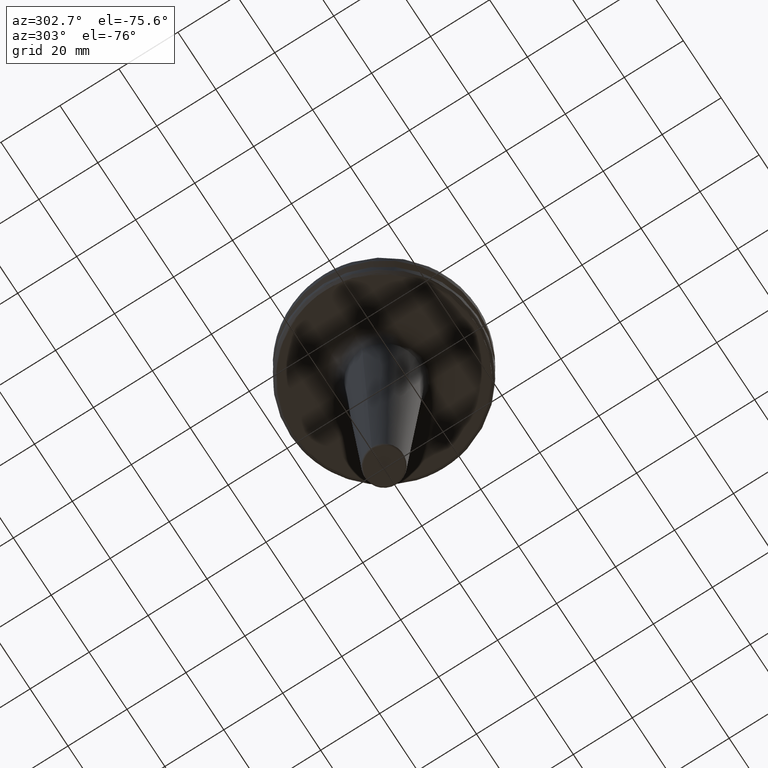
[diagram: clean part render]
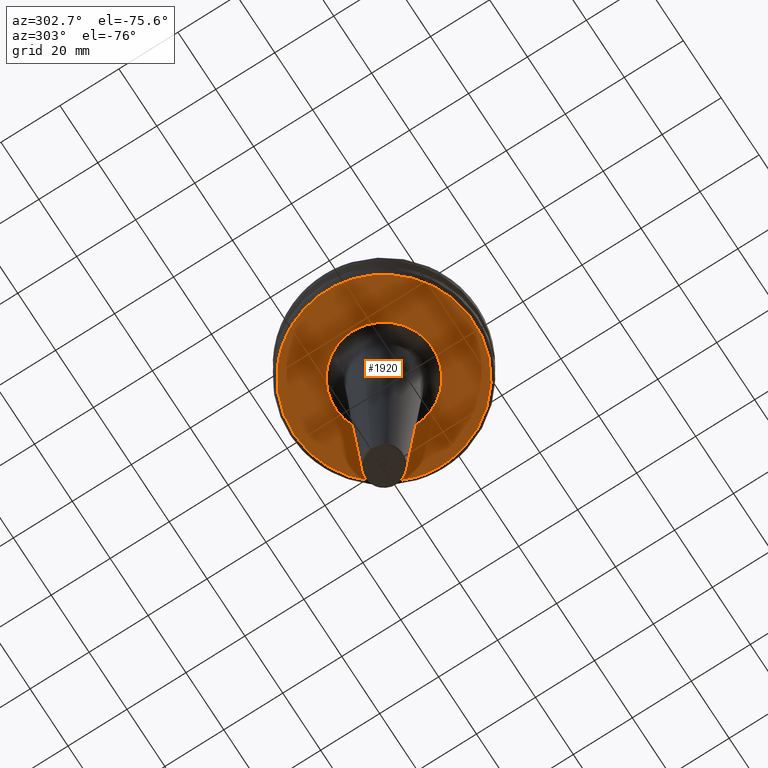
[diagram: same view with one face highlighted and labeled with its STEP entity id]
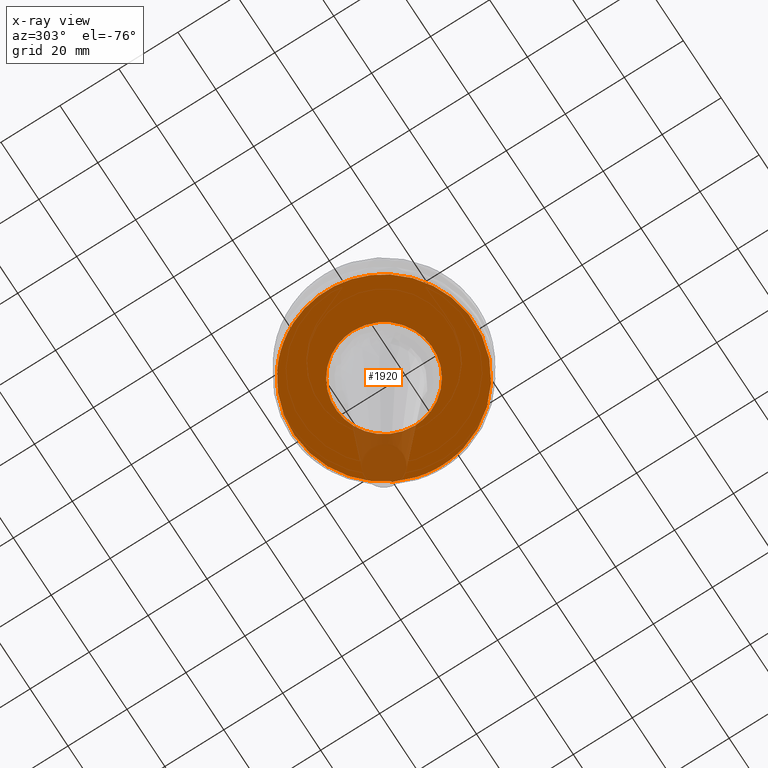
[diagram: x-ray of the same camera — body ghosted, the highlighted face saturated]
A machine part, auxiliary view. The second image highlights one B-rep face of the part: STEP entity #1920.
The next image is the same camera in x-ray: the body ghosted, the highlighted face saturated — about 10% of this face is hidden behind the body in this view.
In plain terms, the highlighted planar face has unit normal (0, 0, -1).
Its self-contained STEP definition (entity closure, byte-faithful):
#2 = CARTESIAN_POINT ( 'NONE',  ( -15.34615993165962600, 6.150526174094203200, -19.10000000000000900 ) ) ;
#4 = CARTESIAN_POINT ( 'NONE',  ( 3.074248791744299800, 16.24446030572720500, -19.10000000000000500 ) ) ;
#14 = CARTESIAN_POINT ( 'NONE',  ( -4.315362869124298200, 15.97550834787983800, -19.10000000000001200 ) ) ;
#26 = CARTESIAN_POINT ( 'NONE',  ( -8.987202671521004000, 13.87687311585517200, -19.09999999999999800 ) ) ;
#50 = CARTESIAN_POINT ( 'NONE',  ( 16.21269048989746200, -3.238690873126965500, -19.10000000000000100 ) ) ;
#60 = CARTESIAN_POINT ( 'NONE',  ( -8.767786026824518700, 29.30104552520869300, -19.10000000000000500 ) ) ;
#71 = CARTESIAN_POINT ( 'NONE',  ( 2.338937091250613300, 30.49485090081023100, -19.10000000000000100 ) ) ;
#75 = DIRECTION ( 'NONE',  ( -1.000000000000000000, 0.0000000000000000000, -0.0000000000000000000 ) ) ;
#81 = CARTESIAN_POINT ( 'NONE',  ( 11.26206975055332500, 28.44666309692501500, -19.10000000000000100 ) ) ;
#85 = CARTESIAN_POINT ( 'NONE',  ( 25.91506848432963000, -16.24456535706762800, -19.10000000000000500 ) ) ;
#95 = CARTESIAN_POINT ( 'NONE',  ( 16.98334930198293300, 25.44334661411777900, -19.10000000000000500 ) ) ;
#98 = ORIENTED_EDGE ( 'NONE', *, *, #2979, .F. ) ;
#100 = CARTESIAN_POINT ( 'NONE',  ( 19.93308098988654800, -23.26029377377305400, -19.10000000000000900 ) ) ;
#110 = CARTESIAN_POINT ( 'NONE',  ( 24.61278002360990800, 18.15588099004128300, -19.10000000000000500 ) ) ;
#112 = ORIENTED_EDGE ( 'NONE', *, *, #188, .F. ) ;
#113 = CARTESIAN_POINT ( 'NONE',  ( 9.741308101238560700, -28.99155239477984500, -19.10000000000000900 ) ) ;
#118 = CARTESIAN_POINT ( 'NONE',  ( 2.946176467438585500, -16.26817179765287900, -19.10000000000000500 ) ) ;
#121 = CARTESIAN_POINT ( 'NONE',  ( 28.28372968616552200, 11.63773453184817400, -19.10000000000000900 ) ) ;
#124 = CARTESIAN_POINT ( 'NONE',  ( -0.7936655208069568500, -30.58432798036122000, -19.10000000000000100 ) ) ;
#127 = CARTESIAN_POINT ( 'NONE',  ( 8.634766711520292400, -14.09994832678611200, -19.10000000000000500 ) ) ;
#132 = CARTESIAN_POINT ( 'NONE',  ( -9.343182468531940900, -29.12229317852812500, -19.10000000000000500 ) ) ;
#141 = CARTESIAN_POINT ( 'NONE',  ( 14.14349387669190200, -8.579424698877504700, -19.10000000000000900 ) ) ;
#150 = CARTESIAN_POINT ( 'NONE',  ( -20.23907096310340100, -22.95838911900774100, -19.10000000000000500 ) ) ;
#155 = CARTESIAN_POINT ( 'NONE',  ( -15.42083940724882200, -5.960811026865079600, -19.10000000000000500 ) ) ;
#157 = CARTESIAN_POINT ( 'NONE',  ( -25.49448276515892400, -16.89479980230323600, -19.10000000000000900 ) ) ;
#162 = CARTESIAN_POINT ( 'NONE',  ( -10.65405962079000100, -12.66483573253134100, -19.10000000000000100 ) ) ;
#168 = CARTESIAN_POINT ( 'NONE',  ( -6.116772042543587400, -15.35964183698100300, -19.10000000000000500 ) ) ;
#188 = EDGE_CURVE ( 'NONE', #316, #1870, #2642, .T. ) ;
#207 = CARTESIAN_POINT ( 'NONE',  ( 15.97550834788081000, 4.315362869119449700, -19.10000000000000500 ) ) ;
#219 = CARTESIAN_POINT ( 'NONE',  ( 13.87687311585640300, 8.987202671519780100, -19.10000000000000500 ) ) ;
#227 = CARTESIAN_POINT ( 'NONE',  ( 6.537441432171974900, 15.18649441436399300, -19.10000000000000500 ) ) ;
#233 = CARTESIAN_POINT ( 'NONE',  ( -16.26816980265087800, -2.946187250105369000, -19.10000000000000900 ) ) ;
#238 = CARTESIAN_POINT ( 'NONE',  ( -15.56928946571527600, 5.587261236326263300, -19.10000000000000900 ) ) ;
#239 = CARTESIAN_POINT ( 'NONE',  ( 2.014362670481972400, 16.44073249159519900, -19.10000000000001200 ) ) ;
#248 = CARTESIAN_POINT ( 'NONE',  ( -5.647711517077676800, 15.53924691929337100, -19.10000000000000500 ) ) ;
#256 = CARTESIAN_POINT ( 'NONE',  ( -10.88360247225647700, 12.49720936636870600, -19.10000000000000500 ) ) ;
#266 = ORIENTED_EDGE ( 'NONE', *, *, #2161, .F. ) ;
#282 = CARTESIAN_POINT ( 'NONE',  ( -14.11067696108144500, 27.14738034496676300, -19.10000000000000500 ) ) ;
#287 = CARTESIAN_POINT ( 'NONE',  ( 16.24446030572687500, -3.074248791746077900, -19.10000000000000900 ) ) ;
#295 = CARTESIAN_POINT ( 'NONE',  ( -6.159607642682074100, 29.98451923137153200, -19.10000000000000500 ) ) ;
#305 = CARTESIAN_POINT ( 'NONE',  ( 2.575749856820219300, 30.47575675141769800, -19.10000000000000500 ) ) ;
#309 = CARTESIAN_POINT ( 'NONE',  ( 29.29697359829781100, -8.815762972852718700, -19.10000000000000500 ) ) ;
#316 = VERTEX_POINT ( 'NONE', #2151 ) ;
#321 = CARTESIAN_POINT ( 'NONE',  ( 12.72171218949350900, 27.81364574513149900, -19.10000000000000900 ) ) ;
#325 = CARTESIAN_POINT ( 'NONE',  ( 25.63623530936496000, -16.67892256050461000, -19.10000000000000500 ) ) ;
#330 = CARTESIAN_POINT ( 'NONE',  ( 18.64294495310518600, 24.24904771131965500, -19.10000000000000900 ) ) ;
#331 = CARTESIAN_POINT ( 'NONE',  ( 16.82180190648200500, -25.56823429586928900, -19.10000000000000500 ) ) ;
#339 = CARTESIAN_POINT ( 'NONE',  ( 25.60981177358732800, 16.74023069123413500, -19.10000000000000500 ) ) ;
#340 = CARTESIAN_POINT ( 'NONE',  ( 9.588757991871142700, -29.04235927048969000, -19.10000000000000100 ) ) ;
#347 = CARTESIAN_POINT ( 'NONE',  ( 3.535410629580827600, -16.15924341479846800, -19.10000000000001600 ) ) ;
#353 = CARTESIAN_POINT ( 'NONE',  ( 28.79848820868595600, 10.36927195262887700, -19.10000000000000500 ) ) ;
#358 = CARTESIAN_POINT ( 'NONE',  ( -3.359542261740482900, -30.40384640239971500, -19.10000000000000500 ) ) ;
#361 = CARTESIAN_POINT ( 'NONE',  ( 8.929745624259492600, -13.91391154186276900, -19.10000000000000100 ) ) ;
#365 = FACE_OUTER_BOUND ( 'NONE', #918, .T. ) ;
#367 = CARTESIAN_POINT ( 'NONE',  ( -9.489238364085435900, -29.07503083623364400, -19.10000000000000900 ) ) ;
#372 = CARTESIAN_POINT ( 'NONE',  ( 14.99008722482821200, -6.983554063432520400, -19.10000000000000500 ) ) ;
#379 = CARTESIAN_POINT ( 'NONE',  ( -21.86129013470800300, -21.39082914621904400, -19.10000000000000100 ) ) ;
#382 = ORIENTED_EDGE ( 'NONE', *, *, #1884, .F. ) ;
#384 = CARTESIAN_POINT ( 'NONE',  ( -15.38482225176215900, -6.053167490767950000, -19.10000000000000500 ) ) ;
#386 = CARTESIAN_POINT ( 'NONE',  ( -26.61736808516047900, -15.10355864978086500, -19.10000000000000500 ) ) ;
#397 = CARTESIAN_POINT ( 'NONE',  ( -9.460890470830351600, -13.55953169659550100, -19.10000000000000500 ) ) ;
#406 = CARTESIAN_POINT ( 'NONE',  ( -4.828829969918425400, -15.82787418291114400, -19.10000000000000100 ) ) ;
#410 = ORIENTED_EDGE ( 'NONE', *, *, #630, .T. ) ;
#441 = CARTESIAN_POINT ( 'NONE',  ( 15.53924691929379700, 5.647711517075550500, -19.10000000000000500 ) ) ;
#451 = CARTESIAN_POINT ( 'NONE',  ( 12.49720936635984000, 10.88360247226535400, -19.10000000000000900 ) ) ;
#456 = CARTESIAN_POINT ( 'NONE',  ( -16.53276776323262000, -0.5055237567539482300, -19.10000000000000500 ) ) ;
#459 = CARTESIAN_POINT ( 'NONE',  ( -13.67987867621171500, 9.284334366236388200, -19.10000000000000500 ) ) ;
#460 = CARTESIAN_POINT ( 'NONE',  ( 6.215275202284222400, 15.32005311055830400, -19.10000000000000500 ) ) ;
#469 = CARTESIAN_POINT ( 'NONE',  ( -16.06412664297930700, 3.924941944440612000, -19.10000000000000500 ) ) ;
#470 = CARTESIAN_POINT ( 'NONE',  ( -0.5054361261884776600, 16.53278397658227000, -19.10000000000001200 ) ) ;
#479 = CARTESIAN_POINT ( 'NONE',  ( -5.960811026864933900, 15.42083940724902600, -19.10000000000001200 ) ) ;
#495 = CARTESIAN_POINT ( 'NONE',  ( -12.66483573254358500, 10.65405962077616000, -19.10000000000000900 ) ) ;
#516 = CARTESIAN_POINT ( 'NONE',  ( -12.65743148084894200, 27.84302147053579500, -19.10000000000000500 ) ) ;
#518 = CARTESIAN_POINT ( 'NONE',  ( 16.44076494094545300, -2.014187349633498300, -19.10000000000000900 ) ) ;
#519 = CARTESIAN_POINT ( 'NONE',  ( 0.0000000000000000000, 0.0000000000000000000, -19.10000000000000500 ) ) ;
#526 = CARTESIAN_POINT ( 'NONE',  ( -3.335826507667983200, 30.41349938460541600, -19.10000000000000100 ) ) ;
#528 = ORIENTED_EDGE ( 'NONE', *, *, #2738, .T. ) ;
#538 = DIRECTION ( 'NONE',  ( -0.0000000000000000000, -0.0000000000000000000, 1.000000000000000000 ) ) ;
#541 = CARTESIAN_POINT ( 'NONE',  ( 4.194626064597124500, 30.30646449917461300, -19.10000000000000500 ) ) ;
#543 = CARTESIAN_POINT ( 'NONE',  ( 28.44748858146412100, -11.24368615697392600, -19.10000000000000100 ) ) ;
#548 = CARTESIAN_POINT ( 'NONE',  ( 13.06536007812701200, 27.65325169537482700, -19.10000000000000100 ) ) ;
#549 = CARTESIAN_POINT ( 'NONE',  ( 25.55219655712748800, -16.80738867178014600, -19.10000000000000900 ) ) ;
#551 = B_SPLINE_CURVE_WITH_KNOTS ( 'NONE', 3,
 ( #985, #309, #1939, #543, #2167, #778, #2400, #1011, #2633, #1251, #2870, #1479, #85, #1713, #325, #1950, #549, #2178, #789, #2410, #1020, #2646, #1261, #2876, #1488, #100, #1725, #331, #1963, #562, #2185, #799, #2426, #1031, #2658, #1279, #2886, #1497, #113, #1738, #340, #1976, #578, #2199, #809, #2438, #1044, #2670, #1288, #2904, #1507, #124, #1752, #358, #1988, #591, #2216, #819, #2447, #1057, #2682, #1297, #2914, #1522, #132, #1763, #367, #1998, #599, #2226, #834, #2453, #1064, #2695, #1305, #2922, #1532, #150, #1771, #379, #2010, #606, #2234, #843, #2463, #1074, #2700, #1313, #2930, #1540, #157, #1780, #386, #2017, #616, #2243, #852, #2470, #1088, #2707, #1323, #2940 ),
 .UNSPECIFIED., .F., .F.,
 ( 4, 1, 1, 1, 1, 2, 2, 1, 1, 1, 1, 2, 2, 1, 1, 1, 2, 2, 2, 1, 1, 1, 2, 2, 1, 1, 1, 1, 2, 2, 1, 1, 1, 1, 2, 2, 2, 1, 1, 1, 1, 2, 2, 1, 1, 1, 1, 2, 2, 1, 1, 1, 2, 2, 2, 1, 1, 1, 2, 2, 1, 1, 1, 1, 2, 2, 1, 1, 1, 1, 2, 2, 4 ),
 ( 0.0000000000000000000, 0.03125000000000043000, 0.04687500000000063800, 0.05468750000000073600, 0.05859375000000075600, 0.06054687500000074200, 0.06250000000000072200, 0.09375000000000025000, 0.1093750000000000400, 0.1171874999999999200, 0.1210937499999997900, 0.1230468749999997600, 0.1249999999999997400, 0.1562499999999992200, 0.1718749999999989700, 0.1796874999999988600, 0.1835937499999988100, 0.1874999999999987500, 0.2499999999999989500, 0.2812499999999990000, 0.2968749999999991100, 0.3046874999999991700, 0.3085937499999991700, 0.3124999999999991100, 0.3437499999999990600, 0.3593749999999990600, 0.3671874999999990600, 0.3710937499999991100, 0.3730468749999991700, 0.3749999999999991700, 0.4062499999999991100, 0.4218749999999990600, 0.4296874999999990600, 0.4335937499999990600, 0.4355468749999990600, 0.4374999999999990600, 0.4999999999999995000, 0.5312499999999997800, 0.5468749999999998900, 0.5546875000000000000, 0.5585937500000000000, 0.5605468750000001100, 0.5625000000000001100, 0.5937500000000005600, 0.6093750000000007800, 0.6171875000000008900, 0.6210937500000008900, 0.6230468750000008900, 0.6250000000000008900, 0.6562500000000010000, 0.6718750000000010000, 0.6796875000000010000, 0.6835937500000011100, 0.6875000000000011100, 0.7500000000000013300, 0.7812500000000013300, 0.7968750000000013300, 0.8046875000000013300, 0.8085937500000012200, 0.8125000000000012200, 0.8437500000000014400, 0.8593750000000015500, 0.8671875000000015500, 0.8710937500000015500, 0.8730468750000015500, 0.8750000000000015500, 0.9062500000000016700, 0.9218750000000017800, 0.9296875000000017800, 0.9335937500000017800, 0.9355468750000017800, 0.9375000000000017800, 1.000000000000000000 ),
 .UNSPECIFIED. ) ;
#560 = CARTESIAN_POINT ( 'NONE',  ( 19.25930180620994000, 23.75930152089461000, -19.10000000000001200 ) ) ;
#562 = CARTESIAN_POINT ( 'NONE',  ( 14.88253584773120200, -26.72066063288397000, -19.10000000000000100 ) ) ;
#576 = CARTESIAN_POINT ( 'NONE',  ( 26.46695125748617600, 15.32790333300081500, -19.10000000000000900 ) ) ;
#578 = CARTESIAN_POINT ( 'NONE',  ( 7.565125950941371100, -29.65418414010071800, -19.10000000000000500 ) ) ;
#584 = CARTESIAN_POINT ( 'NONE',  ( 5.206696993599952500, -15.69559359181783100, -19.10000000000000500 ) ) ;
#588 = CARTESIAN_POINT ( 'NONE',  ( 29.50593695887979000, 8.050011640416025600, -19.10000000000000500 ) ) ;
#591 = CARTESIAN_POINT ( 'NONE',  ( -4.391022105728267500, -30.26774995785368500, -19.10000000000000500 ) ) ;
#594 = CARTESIAN_POINT ( 'NONE',  ( 10.00191735403211300, -13.21352104569939500, -19.10000000000000500 ) ) ;
#599 = CARTESIAN_POINT ( 'NONE',  ( -11.53725264662773900, -28.34718016712044900, -19.10000000000000900 ) ) ;
#602 = CARTESIAN_POINT ( 'NONE',  ( 15.28060017657957400, -6.312245946726529900, -19.10000000000000500 ) ) ;
#606 = CARTESIAN_POINT ( 'NONE',  ( -22.23347045905034500, -21.00201711043238700, -19.10000000000000100 ) ) ;
#614 = CARTESIAN_POINT ( 'NONE',  ( -14.82045920772340600, -7.364574780070396900, -19.10000000000000900 ) ) ;
#616 = CARTESIAN_POINT ( 'NONE',  ( -27.60161413460691900, -13.17678050942531300, -19.10000000000001200 ) ) ;
#624 = CARTESIAN_POINT ( 'NONE',  ( -9.166049023286326800, -13.75939887885152200, -19.10000000000000100 ) ) ;
#630 = EDGE_CURVE ( 'NONE', #2018, #1870, #671, .T. ) ;
#632 = CARTESIAN_POINT ( 'NONE',  ( -3.468235044735970400, -16.16589544550655700, -19.10000000000000500 ) ) ;
#635 = AXIS2_PLACEMENT_3D ( 'NONE', #941, #2567, #1187 ) ;
#671 = B_SPLINE_CURVE_WITH_KNOTS ( 'NONE', 3,
 ( #1746, #1037, #816, #2442, #1052, #2676 ),
 .UNSPECIFIED., .F., .F.,
 ( 4, 2, 4 ),
 ( 0.0000000000000000000, 0.5000000000000000000, 1.000000000000000000 ),
 .UNSPECIFIED. ) ;
#673 = CARTESIAN_POINT ( 'NONE',  ( 15.42083940724917000, 5.960811026864265100, -19.10000000000000500 ) ) ;
#684 = CARTESIAN_POINT ( 'NONE',  ( 10.65405962078392600, 12.66483573253581500, -19.10000000000000500 ) ) ;
#690 = CARTESIAN_POINT ( 'NONE',  ( -13.79964722198945100, 9.105325154445665700, -19.10000000000000900 ) ) ;
#693 = CARTESIAN_POINT ( 'NONE',  ( 6.116772042544477400, 15.35964183698079400, -19.10000000000000900 ) ) ;
#708 = CARTESIAN_POINT ( 'NONE',  ( -16.21269048989853400, 3.238690873121286900, -19.10000000000000900 ) ) ;
#709 = CARTESIAN_POINT ( 'NONE',  ( -2.136224349892057000, 16.39765989801975700, -19.10000000000000500 ) ) ;
#719 = CARTESIAN_POINT ( 'NONE',  ( -6.053167490767644500, 15.38482225176231400, -19.10000000000000500 ) ) ;
#730 = CARTESIAN_POINT ( 'NONE',  ( -13.55953169660085000, 9.460890470824294200, -19.10000000000000100 ) ) ;
#750 = CARTESIAN_POINT ( 'NONE',  ( -12.30602042319770800, 27.99943186576027500, -19.10000000000001600 ) ) ;
#753 = CARTESIAN_POINT ( 'NONE',  ( 16.53276776323262000, 2.024680112228937900E-015, -19.10000000000000500 ) ) ;
#754 = DIRECTION ( 'NONE',  ( 1.000000000000000000, 0.0000000000000000000, 0.0000000000000000000 ) ) ;
#763 = CARTESIAN_POINT ( 'NONE',  ( -1.754889633223906300, 30.53434994063401200, -19.10000000000000500 ) ) ;
#776 = CARTESIAN_POINT ( 'NONE',  ( 5.798126224598956200, 30.03039269424756300, -19.10000000000000100 ) ) ;
#778 = CARTESIAN_POINT ( 'NONE',  ( 28.04473044301726900, -12.20290262157235800, -19.10000000000000100 ) ) ;
#785 = CARTESIAN_POINT ( 'NONE',  ( 13.76217383423211000, 27.32011485464017000, -19.10000000000000500 ) ) ;
#788 = CARTESIAN_POINT ( 'NONE',  ( -16.53276776323262000, 0.0000000000000000000, -19.10000000000000500 ) ) ;
#789 = CARTESIAN_POINT ( 'NONE',  ( 24.31095900104777700, -18.59161355311120500, -19.10000000000000900 ) ) ;
#797 = CARTESIAN_POINT ( 'NONE',  ( 20.48123999505939400, 22.74936446789017100, -19.10000000000000100 ) ) ;
#799 = CARTESIAN_POINT ( 'NONE',  ( 14.40947314747780600, -26.97737969063206300, -19.10000000000000500 ) ) ;
#803 = CARTESIAN_POINT ( 'NONE',  ( -1.010872252384309200, -16.53273533653331700, -19.10000000000000500 ) ) ;
#807 = CARTESIAN_POINT ( 'NONE',  ( 26.66158410836062100, 14.98553842598051500, -19.10000000000000500 ) ) ;
#809 = CARTESIAN_POINT ( 'NONE',  ( 5.447226833889317300, -30.09658397973939300, -19.10000000000000500 ) ) ;
#814 = CARTESIAN_POINT ( 'NONE',  ( 5.867055644133836600, -15.45697625940530000, -19.10000000000000900 ) ) ;
#816 = CARTESIAN_POINT ( 'NONE',  ( -28.29883549210119800, 11.76494105805098300, -19.10000000000000500 ) ) ;
#819 = CARTESIAN_POINT ( 'NONE',  ( -4.636279539811212700, -30.23090493186514000, -19.10000000000000100 ) ) ;
#826 = CARTESIAN_POINT ( 'NONE',  ( 12.09384705961449700, -11.28704361256715000, -19.10000000000000500 ) ) ;
#831 = CARTESIAN_POINT ( 'NONE',  ( 29.50593695887979000, 8.050011640416025600, -19.10000000000000500 ) ) ;
#834 = CARTESIAN_POINT ( 'NONE',  ( -13.55750927079556900, -27.41669403125807100, -19.10000000000000500 ) ) ;
#839 = CARTESIAN_POINT ( 'NONE',  ( 15.34615993165869500, -6.150526174095629600, -19.10000000000000100 ) ) ;
#843 = CARTESIAN_POINT ( 'NONE',  ( -22.95981042903576300, -20.22301021334099100, -19.10000000000000900 ) ) ;
#850 = CARTESIAN_POINT ( 'NONE',  ( -14.09994832679044000, -8.634766711511176100, -19.10000000000000500 ) ) ;
#852 = CARTESIAN_POINT ( 'NONE',  ( -27.81895210720312800, -12.70861568514636500, -19.10000000000000500 ) ) ;
#859 = CARTESIAN_POINT ( 'NONE',  ( -8.579424698881169300, -14.14349387669129100, -19.10000000000000500 ) ) ;
#868 = CARTESIAN_POINT ( 'NONE',  ( -3.140059644919705100, -16.23186921816281400, -19.10000000000000100 ) ) ;
#890 = ORIENTED_EDGE ( 'NONE', *, *, #1446, .T. ) ;
#898 = CARTESIAN_POINT ( 'NONE',  ( 16.39763861799833900, 2.136339365003880400, -19.10000000000000500 ) ) ;
#908 = CARTESIAN_POINT ( 'NONE',  ( 15.38482225176254800, 6.053167490766972100, -19.10000000000000500 ) ) ;
#918 = EDGE_LOOP ( 'NONE', ( #98, #410, #112, #528, #382, #266, #1999 ) ) ;
#919 = CARTESIAN_POINT ( 'NONE',  ( 9.460890470827692400, 13.55953169659745700, -19.10000000000000500 ) ) ;
#928 = CARTESIAN_POINT ( 'NONE',  ( -14.56449018541324100, 7.858665967342094700, -19.10000000000000100 ) ) ;
#929 = CARTESIAN_POINT ( 'NONE',  ( 4.828829969893796200, 15.82787418291696100, -19.10000000000000500 ) ) ;
#934 = CARTESIAN_POINT ( 'NONE',  ( -16.24446030572719500, 3.074248791744376200, -19.10000000000000900 ) ) ;
#935 = CARTESIAN_POINT ( 'NONE',  ( -2.790652485336386800, 16.29575933004248600, -19.10000000000000100 ) ) ;
#941 = CARTESIAN_POINT ( 'NONE',  ( 0.0000000000000000000, 0.0000000000000000000, -19.10000000000000500 ) ) ;
#944 = CARTESIAN_POINT ( 'NONE',  ( -7.364574780079108200, 14.82045920771881200, -19.10000000000001200 ) ) ;
#980 = CARTESIAN_POINT ( 'NONE',  ( -11.58667819376902100, 28.31160413811162600, -19.10000000000000900 ) ) ;
#985 = CARTESIAN_POINT ( 'NONE',  ( 29.50593695866786700, -8.050011641192792700, -19.10000000000000500 ) ) ;
#993 = CARTESIAN_POINT ( 'NONE',  ( -1.277990131494122400, 30.55800543620354400, -19.10000000000000500 ) ) ;
#994 = ORIENTED_EDGE ( 'NONE', *, *, #1116, .T. ) ;
#1008 = CARTESIAN_POINT ( 'NONE',  ( 6.178357567779041700, 29.95386665788899800, -19.10000000000000900 ) ) ;
#1011 = CARTESIAN_POINT ( 'NONE',  ( 27.94464134489557200, -12.42979159005786200, -19.10000000000001200 ) ) ;
#1017 = CARTESIAN_POINT ( 'NONE',  ( 15.52813128130545700, 26.35237235011442500, -19.10000000000000900 ) ) ;
#1020 = CARTESIAN_POINT ( 'NONE',  ( 22.88153702451384300, -20.29572449130178000, -19.10000000000000100 ) ) ;
#1029 = CARTESIAN_POINT ( 'NONE',  ( 22.71169545599505600, 20.49349008205810900, -19.10000000000000900 ) ) ;
#1031 = CARTESIAN_POINT ( 'NONE',  ( 13.46675684607612000, -27.47306857769193300, -19.10000000000000900 ) ) ;
#1036 = CARTESIAN_POINT ( 'NONE',  ( 1.260557331713640900, -16.49829507823681100, -19.10000000000000500 ) ) ;
#1037 = CARTESIAN_POINT ( 'NONE',  ( -28.99013299704189700, 9.940434568560412700, -19.10000000000000100 ) ) ;
#1040 = CARTESIAN_POINT ( 'NONE',  ( 27.03965408853028400, 14.30535447364331600, -19.10000000000000100 ) ) ;
#1044 = CARTESIAN_POINT ( 'NONE',  ( 4.938364931540699700, -30.18303432026915800, -19.10000000000000500 ) ) ;
#1050 = CARTESIAN_POINT ( 'NONE',  ( 6.023259227988106100, -15.39655306182878500, -19.10000000000000500 ) ) ;
#1052 = CARTESIAN_POINT ( 'NONE',  ( -25.54018883534800800, 16.93931054832113100, -19.10000000000000500 ) ) ;
#1057 = CARTESIAN_POINT ( 'NONE',  ( -5.550699401406691700, -30.08776695510170300, -19.10000000000000500 ) ) ;
#1059 = CARTESIAN_POINT ( 'NONE',  ( 13.27125534796412500, -9.866751345989206000, -19.10000000000000500 ) ) ;
#1064 = CARTESIAN_POINT ( 'NONE',  ( -14.03061632106972200, -27.17633901377901000, -19.10000000000000900 ) ) ;
#1070 = CARTESIAN_POINT ( 'NONE',  ( 15.56928946571268200, -5.587261236340093100, -19.10000000000000500 ) ) ;
#1072 = CARTESIAN_POINT ( 'NONE',  ( -16.15924341479917800, -3.535410629576757100, -19.09999999999999800 ) ) ;
#1074 = CARTESIAN_POINT ( 'NONE',  ( -24.67913322280990200, -18.07380832753302600, -19.10000000000000500 ) ) ;
#1085 = CARTESIAN_POINT ( 'NONE',  ( -13.91391154186414700, -8.929745624256614900, -19.10000000000000500 ) ) ;
#1088 = CARTESIAN_POINT ( 'NONE',  ( -27.88382002489398900, -12.56563911166203700, -19.10000000000000900 ) ) ;
#1093 = CARTESIAN_POINT ( 'NONE',  ( -6.983554063437324500, -14.99008722482742500, -19.10000000000001200 ) ) ;
#1101 = CARTESIAN_POINT ( 'NONE',  ( -3.039415081285464600, -16.25101013402035800, -19.10000000000000100 ) ) ;
#1103 = CARTESIAN_POINT ( 'NONE',  ( 30.58435880037907500, 0.0000000000000000000, -19.10000000000000500 ) ) ;
#1116 = EDGE_CURVE ( 'NONE', #1594, #2478, #1775, .T. ) ;
#1129 = CARTESIAN_POINT ( 'NONE',  ( 16.29575268003579000, 2.790688427558834000, -19.10000000000000100 ) ) ;
#1141 = CARTESIAN_POINT ( 'NONE',  ( 14.82045920771239600, 7.364574780097800800, -19.10000000000000100 ) ) ;
#1151 = CARTESIAN_POINT ( 'NONE',  ( 9.166049023285481200, 13.75939887885213500, -19.10000000000000500 ) ) ;
#1157 = CARTESIAN_POINT ( 'NONE',  ( -16.53276776323262000, 0.0000000000000000000, -19.10000000000000500 ) ) ;
#1161 = CARTESIAN_POINT ( 'NONE',  ( -15.18649441436540600, 6.537441432168059800, -19.10000000000000500 ) ) ;
#1163 = CARTESIAN_POINT ( 'NONE',  ( 3.468235044725200400, 16.16589544550910100, -19.10000000000000900 ) ) ;
#1172 = CARTESIAN_POINT ( 'NONE',  ( -16.44076494094544600, 2.014187349633085300, -19.10000000000000500 ) ) ;
#1176 = CARTESIAN_POINT ( 'NONE',  ( -2.946176467438133900, 16.26817179765287200, -19.10000000000000100 ) ) ;
#1187 = DIRECTION ( 'NONE',  ( 1.000000000000000000, 0.0000000000000000000, 0.0000000000000000000 ) ) ;
#1188 = EDGE_CURVE ( 'NONE', #2066, #2266, #551, .T. ) ;
#1190 = CARTESIAN_POINT ( 'NONE',  ( -8.634766711514988200, 14.09994832678842700, -19.10000000000000100 ) ) ;
#1198 = CARTESIAN_POINT ( 'NONE',  ( -18.50002675305175600, 24.35471234419720000, -19.10000000000000500 ) ) ;
#1216 = CARTESIAN_POINT ( 'NONE',  ( 15.82787418291227200, -4.828829969919158100, -19.10000000000000500 ) ) ;
#1227 = VERTEX_POINT ( 'NONE', #1103 ) ;
#1228 = CARTESIAN_POINT ( 'NONE',  ( -9.668279344121133400, 29.01896080072954100, -19.10000000000000500 ) ) ;
#1238 = AXIS2_PLACEMENT_3D ( 'NONE', #1328, #1800, #1347 ) ;
#1241 = CARTESIAN_POINT ( 'NONE',  ( 0.4531822849060669900, 30.59235866177671400, -19.10000000000000500 ) ) ;
#1248 = CARTESIAN_POINT ( 'NONE',  ( 7.517538265328743900, 29.67087649393396000, -19.10000000000000500 ) ) ;
#1251 = CARTESIAN_POINT ( 'NONE',  ( 27.56587331839861600, -13.27428387458943800, -19.09999999999999800 ) ) ;
#1258 = CARTESIAN_POINT ( 'NONE',  ( 16.18968749047009200, 25.94803225022423700, -19.10000000000000900 ) ) ;
#1261 = CARTESIAN_POINT ( 'NONE',  ( 22.52513206187470700, -20.68888644021010800, -19.10000000000000900 ) ) ;
#1275 = CARTESIAN_POINT ( 'NONE',  ( 24.03691940912555600, 18.91573389369128600, -19.10000000000000500 ) ) ;
#1279 = CARTESIAN_POINT ( 'NONE',  ( 10.94079956306805100, -28.56608249322954800, -19.10000000000000900 ) ) ;
#1284 = CARTESIAN_POINT ( 'NONE',  ( 2.572730928590551100, -16.33224277487438100, -19.10000000000000100 ) ) ;
#1286 = CARTESIAN_POINT ( 'NONE',  ( 27.91908508163535500, 12.49379923642603000, -19.10000000000000500 ) ) ;
#1288 = CARTESIAN_POINT ( 'NONE',  ( 4.783350766199017600, -30.20798338819395200, -19.10000000000000500 ) ) ;
#1291 = CARTESIAN_POINT ( 'NONE',  ( 6.604934064761747200, -15.16640282920802500, -19.10000000000000900 ) ) ;
#1297 = CARTESIAN_POINT ( 'NONE',  ( -8.158427338735364700, -29.48125659895528400, -19.10000000000000500 ) ) ;
#1299 = CARTESIAN_POINT ( 'NONE',  ( 13.67987867621011400, -9.284334366238832500, -19.10000000000000500 ) ) ;
#1305 = CARTESIAN_POINT ( 'NONE',  ( -15.74490649238654400, -26.27680638947031300, -19.10000000000000900 ) ) ;
#1310 = CARTESIAN_POINT ( 'NONE',  ( -15.69559359181877200, -5.206696993594606600, -19.10000000000000500 ) ) ;
#1313 = CARTESIAN_POINT ( 'NONE',  ( -25.31652938757393300, -17.16082103678996200, -19.10000000000000100 ) ) ;
#1322 = CARTESIAN_POINT ( 'NONE',  ( -13.21352104570850000, -10.00191735402485400, -19.10000000000001200 ) ) ;
#1323 = CARTESIAN_POINT ( 'NONE',  ( -29.08795742227681900, -9.581875916355663500, -19.09999999999999800 ) ) ;
#1328 = CARTESIAN_POINT ( 'NONE',  ( 0.0000000000000000000, 0.0000000000000000000, -19.10000000000000500 ) ) ;
#1331 = CARTESIAN_POINT ( 'NONE',  ( -6.312245946728033600, -15.28060017657932900, -19.10000000000000500 ) ) ;
#1347 = DIRECTION ( 'NONE',  ( 1.000000000000000000, 0.0000000000000000000, 0.0000000000000000000 ) ) ;
#1355 = AXIS2_PLACEMENT_3D ( 'NONE', #1933, #538, #2162 ) ;
#1363 = CIRCLE ( 'NONE', #635, 30.58435880041008700 ) ;
#1368 = CARTESIAN_POINT ( 'NONE',  ( 16.26816980265088100, 2.946187250104871600, -19.10000000000000900 ) ) ;
#1374 = EDGE_LOOP ( 'NONE', ( #994, #890 ) ) ;
#1378 = CARTESIAN_POINT ( 'NONE',  ( 14.09994832678563400, 8.634766711523166500, -19.10000000000000500 ) ) ;
#1385 = CARTESIAN_POINT ( 'NONE',  ( 8.579424698870990800, 14.14349387669766000, -19.10000000000000500 ) ) ;
#1392 = CARTESIAN_POINT ( 'NONE',  ( -16.33223036152855200, -2.572798020739421000, -19.10000000000000500 ) ) ;
#1394 = CARTESIAN_POINT ( 'NONE',  ( -15.32005311055874600, 6.215275202282990500, -19.10000000000000500 ) ) ;
#1395 = CARTESIAN_POINT ( 'NONE',  ( 3.140059644916327400, 16.23186921816361000, -19.10000000000000100 ) ) ;
#1406 = CARTESIAN_POINT ( 'NONE',  ( -16.53276776323262000, 0.0000000000000000000, -19.10000000000000500 ) ) ;
#1407 = CARTESIAN_POINT ( 'NONE',  ( -3.535410629576127400, 16.15924341480005600, -19.10000000000000500 ) ) ;
#1415 = CARTESIAN_POINT ( 'NONE',  ( -8.929745624257812200, 13.91391154186350600, -19.10000000000000900 ) ) ;
#1436 = CARTESIAN_POINT ( 'NONE',  ( -17.51886799372202900, 25.09995254383747500, -19.10000000000000500 ) ) ;
#1442 = CARTESIAN_POINT ( 'NONE',  ( 16.16589544550705100, -3.468235044736296800, -19.10000000000000500 ) ) ;
#1443 = CARTESIAN_POINT ( 'NONE',  ( -24.35471234555335200, 18.50002675126641800, -19.10000000000000500 ) ) ;
#1446 = EDGE_CURVE ( 'NONE', #2478, #1594, #2972, .T. ) ;
#1449 = CARTESIAN_POINT ( 'NONE',  ( -8.917516567687371800, 29.25582015750815400, -19.10000000000000500 ) ) ;
#1462 = CARTESIAN_POINT ( 'NONE',  ( 2.103333420339649000, 30.51262227300270200, -19.10000000000000100 ) ) ;
#1466 = DIRECTION ( 'NONE',  ( 0.0000000000000000000, 0.0000000000000000000, -1.000000000000000000 ) ) ;
#1474 = CARTESIAN_POINT ( 'NONE',  ( 10.41034370100355100, 28.76445469558826700, -19.10000000000000500 ) ) ;
#1479 = CARTESIAN_POINT ( 'NONE',  ( 26.29437709911257700, -15.63042418696883700, -19.10000000000000500 ) ) ;
#1486 = CARTESIAN_POINT ( 'NONE',  ( 16.38572052405262600, 25.82468945861612000, -19.10000000000000100 ) ) ;
#1488 = CARTESIAN_POINT ( 'NONE',  ( 21.20610461385350800, -22.10596665135101400, -19.10000000000000100 ) ) ;
#1495 = CARTESIAN_POINT ( 'NONE',  ( 24.51742230446014800, 18.28446092688399100, -19.10000000000000500 ) ) ;
#1497 = CARTESIAN_POINT ( 'NONE',  ( 9.892237708290188900, -28.94069923155255000, -19.10000000000000500 ) ) ;
#1501 = CARTESIAN_POINT ( 'NONE',  ( 2.883976352672581000, -16.27931466441612700, -19.10000000000000100 ) ) ;
#1505 = CARTESIAN_POINT ( 'NONE',  ( 28.22432639104233900, 11.78107541670503600, -19.10000000000000500 ) ) ;
#1507 = CARTESIAN_POINT ( 'NONE',  ( 1.587331041613742700, -30.58428776442982800, -19.10000000000000500 ) ) ;
#1513 = CARTESIAN_POINT ( 'NONE',  ( 8.217005526796082600, -14.35108143407733100, -19.10000000000000100 ) ) ;
#1522 = CARTESIAN_POINT ( 'NONE',  ( -9.195643051181685100, -29.16949528698672400, -19.10000000000000900 ) ) ;
#1527 = CARTESIAN_POINT ( 'NONE',  ( 13.79964722199039800, -9.105325154444203800, -19.10000000000000500 ) ) ;
#1532 = CARTESIAN_POINT ( 'NONE',  ( -19.24823797460855300, -23.78338029378941300, -19.10000000000001200 ) ) ;
#1538 = CARTESIAN_POINT ( 'NONE',  ( -15.45697625940559100, -5.867055644132165100, -19.10000000000000500 ) ) ;
#1540 = CARTESIAN_POINT ( 'NONE',  ( -25.46428937167067700, -16.94027857338939600, -19.10000000000000500 ) ) ;
#1547 = AXIS2_PLACEMENT_3D ( 'NONE', #1929, #1466, #75 ) ;
#1549 = CARTESIAN_POINT ( 'NONE',  ( -11.28704361256975700, -12.09384705961096900, -19.10000000000000500 ) ) ;
#1563 = CARTESIAN_POINT ( 'NONE',  ( -6.150526174096079900, -15.34615993165861900, -19.10000000000000100 ) ) ;
#1591 = CIRCLE ( 'NONE', #2556, 30.58435880041008700 ) ;
#1594 = VERTEX_POINT ( 'NONE', #788 ) ;
#1601 = CARTESIAN_POINT ( 'NONE',  ( 16.15924341480061700, 3.535410629573359800, -19.10000000000000500 ) ) ;
#1612 = CARTESIAN_POINT ( 'NONE',  ( 13.91391154186262500, 8.929745624260402100, -19.10000000000000500 ) ) ;
#1621 = CARTESIAN_POINT ( 'NONE',  ( 6.983554063423966300, 14.99008722483578100, -19.10000000000000500 ) ) ;
#1622 = CARTESIAN_POINT ( 'NONE',  ( 16.53276776323262000, 2.024680112228937900E-015, -19.10000000000000500 ) ) ;
#1626 = CARTESIAN_POINT ( 'NONE',  ( -16.27931076941221600, -2.883997404545823000, -19.10000000000000500 ) ) ;
#1629 = CARTESIAN_POINT ( 'NONE',  ( -15.35964183698079900, 6.116772042544433900, -19.10000000000000900 ) ) ;
#1630 = CARTESIAN_POINT ( 'NONE',  ( 3.039415081285699500, 16.25101013402036200, -19.10000000000000500 ) ) ;
#1639 = CARTESIAN_POINT ( 'NONE',  ( -5.206696993593783200, 15.69559359181990900, -19.10000000000000500 ) ) ;
#1654 = CARTESIAN_POINT ( 'NONE',  ( -10.00191735403386600, 13.21352104570133300, -19.10000000000001200 ) ) ;
#1672 = CARTESIAN_POINT ( 'NONE',  ( -15.99112436415940900, 26.12219316515105300, -19.10000000000000900 ) ) ;
#1677 = CARTESIAN_POINT ( 'NONE',  ( 16.23186921816297000, -3.140059644919806800, -19.10000000000000500 ) ) ;
#1684 = CARTESIAN_POINT ( 'NONE',  ( -7.396785857642844200, 29.70357443817780300, -19.10000000000000100 ) ) ;
#1699 = CARTESIAN_POINT ( 'NONE',  ( 2.495993614183678500, 30.48239565653807800, -19.10000000000000500 ) ) ;
#1702 = CIRCLE ( 'NONE', #1355, 30.58435880041008700 ) ;
#1711 = CARTESIAN_POINT ( 'NONE',  ( 12.23810548582505600, 28.03197362945626700, -19.10000000000000500 ) ) ;
#1713 = CARTESIAN_POINT ( 'NONE',  ( 25.72060642469137200, -16.54900938329657500, -19.10000000000000500 ) ) ;
#1723 = CARTESIAN_POINT ( 'NONE',  ( 17.76311001678113400, 24.91123626348944600, -19.10000000000000100 ) ) ;
#1725 = CARTESIAN_POINT ( 'NONE',  ( 17.87849741863398000, -24.82948193938068100, -19.10000000000000100 ) ) ;
#1734 = CARTESIAN_POINT ( 'NONE',  ( 25.07711885281372900, 17.51959354323408400, -19.10000000000000100 ) ) ;
#1738 = CARTESIAN_POINT ( 'NONE',  ( 9.640580262597561400, -29.02520083562890100, -19.10000000000000500 ) ) ;
#1744 = CARTESIAN_POINT ( 'NONE',  ( 2.975411778108792300, -16.26285403896940800, -19.10000000000000900 ) ) ;
#1746 = CARTESIAN_POINT ( 'NONE',  ( -29.50593695866786700, 8.050011641192792700, -19.10000000000000500 ) ) ;
#1750 = CARTESIAN_POINT ( 'NONE',  ( 28.31382758094056800, 11.56430445685524000, -19.10000000000000900 ) ) ;
#1752 = CARTESIAN_POINT ( 'NONE',  ( -1.980707750522268800, -30.53825656188765000, -19.10000000000000900 ) ) ;
#1756 = CARTESIAN_POINT ( 'NONE',  ( 8.811995607410331400, -13.98879609070276700, -19.10000000000000100 ) ) ;
#1763 = CARTESIAN_POINT ( 'NONE',  ( -9.441481674779128100, -29.09057131782455500, -19.10000000000000500 ) ) ;
#1766 = CARTESIAN_POINT ( 'NONE',  ( 14.56449018539992900, -7.858665967362459700, -19.10000000000000500 ) ) ;
#1771 = CARTESIAN_POINT ( 'NONE',  ( -21.33119217829327100, -21.92514203399821300, -19.10000000000000500 ) ) ;
#1775 = B_SPLINE_CURVE_WITH_KNOTS ( 'NONE', 3,
 ( #1157, #456, #1850, #2783, #1392, #3004, #1626, #233, #2461, #1072, #2699, #1310, #2927, #1538, #155, #1779, #384, #2016, #614, #2242, #850, #2469, #1085, #2706, #1322, #2939, #1549, #162, #1788, #397, #2025, #624, #2252, #859, #2477, #1093, #2715, #1331, #2948, #1563, #168, #1797, #406, #2035, #632, #2260, #868, #2486, #1101, #2723, #803, #2432, #1036, #2665, #1284, #2896, #1501, #118, #1744, #347, #1981, #584, #2209, #814, #2441, #1050, #2675, #1291, #2909, #1513, #127, #1756, #361, #1990, #594, #2220, #826, #2449, #1059, #2688, #1299, #2916, #1527, #141, #1766, #372, #2005, #602, #2230, #839, #2457, #1070, #1216, #2834, #1442, #50, #1677, #287, #1915, #518, #2142, #753 ),
 .UNSPECIFIED., .F., .F.,
 ( 4, 1, 1, 1, 1, 2, 2, 1, 1, 1, 1, 2, 2, 1, 1, 1, 2, 2, 2, 1, 1, 1, 2, 2, 1, 1, 1, 1, 2, 2, 1, 1, 1, 1, 2, 2, 2, 1, 1, 1, 1, 2, 2, 1, 1, 1, 1, 2, 2, 1, 1, 1, 2, 2, 2, 1, 1, 1, 2, 2, 1, 1, 1, 1, 2, 2, 1, 1, 1, 1, 2, 2, 4 ),
 ( 0.0000000000000000000, 0.03125000000000147100, 0.04687500000000222000, 0.05468750000000260200, 0.05859375000000278900, 0.06054687500000286600, 0.06250000000000294200, 0.09375000000000360800, 0.1093750000000039400, 0.1171875000000041200, 0.1210937500000042200, 0.1230468750000042600, 0.1250000000000043000, 0.1562500000000047500, 0.1718750000000049400, 0.1796875000000050800, 0.1835937500000050800, 0.1875000000000051100, 0.2500000000000057200, 0.2812500000000060000, 0.2968750000000062200, 0.3046875000000062700, 0.3085937500000063800, 0.3125000000000064400, 0.3437500000000069400, 0.3593750000000072700, 0.3671875000000073800, 0.3710937500000074400, 0.3730468750000073800, 0.3750000000000073800, 0.4062500000000067700, 0.4218750000000064900, 0.4296875000000062700, 0.4335937500000062200, 0.4355468750000061600, 0.4375000000000061600, 0.5000000000000051100, 0.5312500000000046600, 0.5468750000000044400, 0.5546875000000043300, 0.5585937500000043300, 0.5605468750000043300, 0.5625000000000042200, 0.5937500000000037700, 0.6093750000000034400, 0.6171875000000034400, 0.6210937500000033300, 0.6230468750000033300, 0.6250000000000033300, 0.6562500000000024400, 0.6718750000000021100, 0.6796875000000018900, 0.6835937500000018900, 0.6875000000000017800, 0.7500000000000013300, 0.7812500000000011100, 0.7968750000000010000, 0.8046875000000008900, 0.8085937500000008900, 0.8125000000000007800, 0.8437500000000006700, 0.8593750000000005600, 0.8671875000000005600, 0.8710937500000004400, 0.8730468750000004400, 0.8750000000000004400, 0.9062500000000004400, 0.9218750000000004400, 0.9296875000000004400, 0.9335937500000004400, 0.9355468750000004400, 0.9375000000000003300, 1.000000000000000000 ),
 .UNSPECIFIED. ) ;
#1779 = CARTESIAN_POINT ( 'NONE',  ( -15.39655306182887200, -6.023259227987605200, -19.10000000000000900 ) ) ;
#1780 = CARTESIAN_POINT ( 'NONE',  ( -25.97824210456839800, -16.16214345845010000, -19.10000000000000100 ) ) ;
#1788 = CARTESIAN_POINT ( 'NONE',  ( -9.866751345992625500, -13.27125534795949600, -19.10000000000000900 ) ) ;
#1797 = CARTESIAN_POINT ( 'NONE',  ( -5.587261236339681000, -15.56928946571203600, -19.10000000000001200 ) ) ;
#1800 = DIRECTION ( 'NONE',  ( -0.0000000000000000000, -0.0000000000000000000, 1.000000000000000000 ) ) ;
#1828 = CARTESIAN_POINT ( 'NONE',  ( 16.53276776323262400, 0.5055237567498697100, -19.10000000000000900 ) ) ;
#1838 = CARTESIAN_POINT ( 'NONE',  ( 15.69559359182064500, 5.206696993590144400, -19.10000000000000500 ) ) ;
#1845 = CARTESIAN_POINT ( 'NONE',  ( 13.21352104568172700, 10.00191735405346400, -19.10000000000000500 ) ) ;
#1850 = CARTESIAN_POINT ( 'NONE',  ( -16.49826670487493300, -1.260710685196774200, -19.10000000000000500 ) ) ;
#1854 = CARTESIAN_POINT ( 'NONE',  ( 6.312245946723865400, 15.28060017658193100, -19.10000000000000500 ) ) ;
#1863 = CARTESIAN_POINT ( 'NONE',  ( -15.82787418291683300, 4.828829969894932200, -19.10000000000000500 ) ) ;
#1868 = CARTESIAN_POINT ( 'NONE',  ( 1.010872252376979300, 16.53273533653331400, -19.10000000000000500 ) ) ;
#1870 = VERTEX_POINT ( 'NONE', #1443 ) ;
#1879 = CARTESIAN_POINT ( 'NONE',  ( -5.867055644131916400, 15.45697625940595000, -19.10000000000000100 ) ) ;
#1884 = EDGE_CURVE ( 'NONE', #1227, #2803, #1591, .T. ) ;
#1888 = CARTESIAN_POINT ( 'NONE',  ( -12.09384705961796400, 11.28704361256185300, -19.10000000000000900 ) ) ;
#1910 = CARTESIAN_POINT ( 'NONE',  ( -13.14593330072873200, 27.61811721527876200, -19.10000000000000900 ) ) ;
#1915 = CARTESIAN_POINT ( 'NONE',  ( 16.25100911997816400, -3.039420560062208800, -19.10000000000000500 ) ) ;
#1920 = ADVANCED_FACE ( 'NONE', ( #365, #2692 ), #2391, .T. ) ;
#1926 = CARTESIAN_POINT ( 'NONE',  ( -4.279122215993030700, 30.29015284362106900, -19.10000000000000500 ) ) ;
#1929 = CARTESIAN_POINT ( 'NONE',  ( 0.0000000000000000000, 2.166680460328873200E-015, -19.10000000000000500 ) ) ;
#1933 = CARTESIAN_POINT ( 'NONE',  ( 0.0000000000000000000, 0.0000000000000000000, -19.10000000000000500 ) ) ;
#1935 = CARTESIAN_POINT ( 'NONE',  ( 3.271282400886674800, 30.41520625110938200, -19.10000000000000500 ) ) ;
#1939 = CARTESIAN_POINT ( 'NONE',  ( 28.94006249014968200, -9.948882374008352500, -19.10000000000000500 ) ) ;
#1946 = CARTESIAN_POINT ( 'NONE',  ( 12.92802695592982500, 27.71772311958008600, -19.10000000000000900 ) ) ;
#1950 = CARTESIAN_POINT ( 'NONE',  ( 25.57975895856417400, -16.76540627108043000, -19.10000000000000100 ) ) ;
#1960 = CARTESIAN_POINT ( 'NONE',  ( 19.01361294775681200, 23.95638265829615000, -19.09999999999999800 ) ) ;
#1963 = CARTESIAN_POINT ( 'NONE',  ( 15.53753395421813000, -26.34988902405435600, -19.10000000000000900 ) ) ;
#1974 = CARTESIAN_POINT ( 'NONE',  ( 26.18838791784893500, 15.80329267786272900, -19.10000000000000500 ) ) ;
#1976 = CARTESIAN_POINT ( 'NONE',  ( 8.754606771855487000, -29.31622083907685900, -19.10000000000000100 ) ) ;
#1981 = CARTESIAN_POINT ( 'NONE',  ( 4.315362869132525400, -15.97550834787706000, -19.10000000000000500 ) ) ;
#1985 = CARTESIAN_POINT ( 'NONE',  ( 29.18634062978594200, 9.221269143563914000, -19.10000000000000500 ) ) ;
#1988 = CARTESIAN_POINT ( 'NONE',  ( -4.047447494820515200, -30.31647627983856800, -19.10000000000000900 ) ) ;
#1990 = CARTESIAN_POINT ( 'NONE',  ( 8.987202671521114200, -13.87687311585529100, -19.10000000000000100 ) ) ;
#1998 = CARTESIAN_POINT ( 'NONE',  ( -10.34692081642918300, -28.79347578717342800, -19.10000000000000500 ) ) ;
#1999 = ORIENTED_EDGE ( 'NONE', *, *, #1188, .T. ) ;
#2005 = CARTESIAN_POINT ( 'NONE',  ( 15.18649441435958600, -6.537441432176962100, -19.10000000000000500 ) ) ;
#2010 = CARTESIAN_POINT ( 'NONE',  ( -22.08505440506140600, -21.15804733461203200, -19.10000000000000100 ) ) ;
#2016 = CARTESIAN_POINT ( 'NONE',  ( -15.16640282921367500, -6.604934064749842900, -19.10000000000000500 ) ) ;
#2017 = CARTESIAN_POINT ( 'NONE',  ( -27.28631539589520500, -13.82611176813281700, -19.10000000000000500 ) ) ;
#2018 = VERTEX_POINT ( 'NONE', #2217 ) ;
#2025 = CARTESIAN_POINT ( 'NONE',  ( -9.284334366240040400, -13.67987867620848900, -19.10000000000000100 ) ) ;
#2035 = CARTESIAN_POINT ( 'NONE',  ( -3.924941944458246300, -16.06412664297505100, -19.10000000000000500 ) ) ;
#2066 = VERTEX_POINT ( 'NONE', #2509 ) ;
#2067 = CARTESIAN_POINT ( 'NONE',  ( 15.45697625940618600, 5.867055644130772400, -19.10000000000000500 ) ) ;
#2075 = CARTESIAN_POINT ( 'NONE',  ( 11.28704361256629000, 12.09384705961352500, -19.10000000000000900 ) ) ;
#2084 = CARTESIAN_POINT ( 'NONE',  ( -13.75939887885321900, 9.166049023284406500, -19.10000000000000900 ) ) ;
#2087 = CARTESIAN_POINT ( 'NONE',  ( 6.150526174094837400, 15.34615993165939900, -19.10000000000000500 ) ) ;
#2093 = CARTESIAN_POINT ( 'NONE',  ( -16.16589544550904400, 3.468235044725687600, -19.10000000000000500 ) ) ;
#2095 = CARTESIAN_POINT ( 'NONE',  ( -1.260557331707205600, 16.49829507823681900, -19.10000000000000100 ) ) ;
#2103 = CARTESIAN_POINT ( 'NONE',  ( -6.023259227987532300, 15.39655306182897300, -19.10000000000000100 ) ) ;
#2112 = CARTESIAN_POINT ( 'NONE',  ( -13.27125534796867100, 9.866751345982233800, -19.10000000000000100 ) ) ;
#2139 = CARTESIAN_POINT ( 'NONE',  ( -12.44675998882116000, 27.93716668423903100, -19.10000000000000500 ) ) ;
#2142 = CARTESIAN_POINT ( 'NONE',  ( 16.53276776323262000, -1.011403053960498600, -19.10000000000000100 ) ) ;
#2143 = DIRECTION ( 'NONE',  ( -0.0000000000000000000, -0.0000000000000000000, 1.000000000000000000 ) ) ;
#2151 = CARTESIAN_POINT ( 'NONE',  ( -18.50002675305175600, 24.35471234419720000, -19.10000000000000500 ) ) ;
#2153 = CARTESIAN_POINT ( 'NONE',  ( -2.229972106739516000, 30.50583071842478200, -19.10000000000000500 ) ) ;
#2161 = EDGE_CURVE ( 'NONE', #2066, #1227, #1702, .T. ) ;
#2162 = DIRECTION ( 'NONE',  ( 1.000000000000000000, 0.0000000000000000000, 0.0000000000000000000 ) ) ;
#2164 = CARTESIAN_POINT ( 'NONE',  ( 5.264802480930863600, 30.13058555675097900, -19.10000000000000100 ) ) ;
#2167 = CARTESIAN_POINT ( 'NONE',  ( 28.18215722315982000, -11.88429583552771100, -19.10000000000000100 ) ) ;
#2176 = CARTESIAN_POINT ( 'NONE',  ( 13.13240365255261600, 27.62148087363473100, -19.10000000000000500 ) ) ;
#2178 = CARTESIAN_POINT ( 'NONE',  ( 25.05482143306667100, -17.56072154682019400, -19.10000000000000500 ) ) ;
#2183 = CARTESIAN_POINT ( 'NONE',  ( 19.38055795302008400, 23.66050113822976500, -19.10000000000001200 ) ) ;
#2185 = CARTESIAN_POINT ( 'NONE',  ( 14.59906577416073300, -26.87526508911176700, -19.10000000000000500 ) ) ;
#2196 = CARTESIAN_POINT ( 'NONE',  ( 26.58403738893923300, 15.12268211273652300, -19.10000000000000100 ) ) ;
#2199 = CARTESIAN_POINT ( 'NONE',  ( 6.156651080568798800, -29.96331126530298800, -19.10000000000000500 ) ) ;
#2209 = CARTESIAN_POINT ( 'NONE',  ( 5.647711517081271300, -15.53924691929215200, -19.10000000000000900 ) ) ;
#2216 = CARTESIAN_POINT ( 'NONE',  ( -4.538187366338957100, -30.24578697828068400, -19.10000000000000100 ) ) ;
#2217 = CARTESIAN_POINT ( 'NONE',  ( -29.50593695866786700, 8.050011641192792700, -19.10000000000000500 ) ) ;
#2220 = CARTESIAN_POINT ( 'NONE',  ( 10.88360247226340300, -12.49720936635809400, -19.09999999999999400 ) ) ;
#2226 = CARTESIAN_POINT ( 'NONE',  ( -12.89007364166148800, -27.74109120042835400, -19.10000000000000100 ) ) ;
#2230 = CARTESIAN_POINT ( 'NONE',  ( 15.32005311055692700, -6.215275202285778500, -19.10000000000000900 ) ) ;
#2234 = CARTESIAN_POINT ( 'NONE',  ( -22.30836331049845400, -20.92243750512144400, -19.10000000000000500 ) ) ;
#2242 = CARTESIAN_POINT ( 'NONE',  ( -14.35108143408476000, -8.217005526780457800, -19.10000000000000500 ) ) ;
#2243 = CARTESIAN_POINT ( 'NONE',  ( -27.75446977479884200, -12.84946292560067400, -19.10000000000000100 ) ) ;
#2252 = CARTESIAN_POINT ( 'NONE',  ( -9.105325154443757900, -13.79964722199047600, -19.10000000000000500 ) ) ;
#2260 = CARTESIAN_POINT ( 'NONE',  ( -3.238690873126791800, -16.21269048989720900, -19.10000000000000100 ) ) ;
#2266 = VERTEX_POINT ( 'NONE', #2406 ) ;
#2294 = CARTESIAN_POINT ( 'NONE',  ( 16.49826670487493300, 1.260710685189634800, -19.10000000000000500 ) ) ;
#2307 = CARTESIAN_POINT ( 'NONE',  ( 15.39655306182904900, 6.023259227987188600, -19.10000000000000100 ) ) ;
#2319 = CARTESIAN_POINT ( 'NONE',  ( 9.866751345988062000, 13.27125534796284600, -19.10000000000000100 ) ) ;
#2326 = CARTESIAN_POINT ( 'NONE',  ( -14.14349387669950700, 8.579424698865873100, -19.10000000000000900 ) ) ;
#2327 = CARTESIAN_POINT ( 'NONE',  ( 5.587261236325610400, 15.56928946571535200, -19.10000000000000500 ) ) ;
#2332 = CARTESIAN_POINT ( 'NONE',  ( -16.23186921816359900, 3.140059644916480200, -19.10000000000000100 ) ) ;
#2333 = CARTESIAN_POINT ( 'NONE',  ( -2.572730928587735100, 16.33224277487438800, -19.10000000000000900 ) ) ;
#2343 = CARTESIAN_POINT ( 'NONE',  ( -6.604934064754824700, 15.16640282921105200, -19.10000000000000500 ) ) ;
#2376 = CARTESIAN_POINT ( 'NONE',  ( -12.23711360209160000, 28.02961778932873900, -19.10000000000000900 ) ) ;
#2387 = CARTESIAN_POINT ( 'NONE',  ( -1.437913567965121800, 30.55090690001179600, -19.10000000000000900 ) ) ;
#2391 = PLANE ( 'NONE',  #1547 ) ;
#2395 = B_SPLINE_CURVE_WITH_KNOTS ( 'NONE', 3,
 ( #1198, #1436, #1672, #282, #1910, #516, #2139, #750, #2376, #980, #2603, #1228, #2845, #1449, #60, #1684, #295, #1926, #526, #2153, #763, #2387, #993, #2618, #1241, #2856, #1462, #71, #1699, #305, #1935, #541, #2164, #776, #2398, #1008, #2628, #1248, #2868, #1474, #81, #1711, #321, #1946, #548, #2176, #785, #2408, #1017, #2643, #1258, #2875, #1486, #95, #1723, #330, #1960, #560, #2183, #797, #2420, #1029, #2656, #1275, #2884, #1495, #110, #1734, #339, #1974, #576, #2196, #807, #2436, #1040, #2669, #1286, #2900, #1505, #121, #1750, #353, #1985, #588 ),
 .UNSPECIFIED., .F., .F.,
 ( 4, 1, 1, 1, 1, 2, 2, 1, 1, 2, 2, 2, 1, 1, 2, 2, 1, 1, 1, 2, 2, 1, 1, 1, 2, 2, 2, 1, 1, 1, 2, 2, 1, 1, 1, 2, 2, 1, 1, 2, 2, 2, 1, 1, 2, 2, 1, 1, 1, 2, 2, 1, 1, 1, 2, 2, 4 ),
 ( 0.0000000000000000000, 0.06250000000000043000, 0.09375000000000063800, 0.1093750000000007500, 0.1171875000000008000, 0.1210937500000008700, 0.1250000000000009400, 0.1562500000000016900, 0.1718750000000020300, 0.1796875000000022200, 0.1875000000000024100, 0.2500000000000042200, 0.2812500000000051600, 0.2968750000000056100, 0.3046875000000058300, 0.3125000000000060500, 0.3437500000000069400, 0.3593750000000073800, 0.3671875000000076100, 0.3710937500000076600, 0.3750000000000077700, 0.4062500000000085500, 0.4218750000000089900, 0.4296875000000092100, 0.4335937500000093800, 0.4375000000000094900, 0.5000000000000109900, 0.5312500000000117700, 0.5468750000000121000, 0.5546875000000122100, 0.5585937500000123200, 0.5625000000000123200, 0.5937500000000121000, 0.6093750000000119900, 0.6171875000000117700, 0.6210937500000117700, 0.6250000000000116600, 0.6562500000000113200, 0.6718750000000111000, 0.6796875000000108800, 0.6875000000000107700, 0.7500000000000093300, 0.7812500000000086600, 0.7968750000000082200, 0.8046875000000079900, 0.8125000000000076600, 0.8437500000000067700, 0.8593750000000063300, 0.8671875000000061100, 0.8710937500000060000, 0.8750000000000058800, 0.9062500000000048800, 0.9218750000000044400, 0.9296875000000043300, 0.9335937500000041100, 0.9375000000000038900, 1.000000000000000000 ),
 .UNSPECIFIED. ) ;
#2398 = CARTESIAN_POINT ( 'NONE',  ( 6.026315443778401900, 29.98482716932647900, -19.10000000000000500 ) ) ;
#2400 = CARTESIAN_POINT ( 'NONE',  ( 27.98481301560113700, -12.33908451847029400, -19.10000000000000500 ) ) ;
#2406 = CARTESIAN_POINT ( 'NONE',  ( -29.50593695887981500, -8.050011640415929600, -19.10000000000000500 ) ) ;
#2408 = CARTESIAN_POINT ( 'NONE',  ( 14.58823882257053300, 26.89349445919003000, -19.10000000000000500 ) ) ;
#2410 = CARTESIAN_POINT ( 'NONE',  ( 23.37016937102523100, -19.73720656645907200, -19.10000000000000500 ) ) ;
#2420 = CARTESIAN_POINT ( 'NONE',  ( 21.40627702113345900, 21.88112117654264600, -19.10000000000000500 ) ) ;
#2426 = CARTESIAN_POINT ( 'NONE',  ( 14.31298725537405200, -27.02868588326913700, -19.10000000000000500 ) ) ;
#2432 = CARTESIAN_POINT ( 'NONE',  ( 0.5054361261921575000, -16.53278397658227000, -19.10000000000000900 ) ) ;
#2436 = CARTESIAN_POINT ( 'NONE',  ( 26.70070361132738800, 14.91571867381870400, -19.10000000000000100 ) ) ;
#2438 = CARTESIAN_POINT ( 'NONE',  ( 5.091218007676277900, -30.15789762491641200, -19.10000000000000900 ) ) ;
#2441 = CARTESIAN_POINT ( 'NONE',  ( 5.960811026866056600, -15.42083940724864600, -19.10000000000000100 ) ) ;
#2442 = CARTESIAN_POINT ( 'NONE',  ( -26.56612284950205100, 15.28016086959555500, -19.10000000000000500 ) ) ;
#2447 = CARTESIAN_POINT ( 'NONE',  ( -4.683322544848318900, -30.22365628541788900, -19.10000000000000500 ) ) ;
#2449 = CARTESIAN_POINT ( 'NONE',  ( 12.66483573253751500, -10.65405962078544500, -19.10000000000000500 ) ) ;
#2453 = CARTESIAN_POINT ( 'NONE',  ( -13.84162992577100000, -27.27309109750847700, -19.10000000000000500 ) ) ;
#2457 = CARTESIAN_POINT ( 'NONE',  ( 15.35964183698096800, -6.116772042543557200, -19.10000000000000500 ) ) ;
#2461 = CARTESIAN_POINT ( 'NONE',  ( -16.26285403896936200, -2.975411778109048100, -19.10000000000000500 ) ) ;
#2463 = CARTESIAN_POINT ( 'NONE',  ( -23.78688261721307700, -19.25759772824421400, -19.10000000000000100 ) ) ;
#2469 = CARTESIAN_POINT ( 'NONE',  ( -13.98879609070538000, -8.811995607404846000, -19.10000000000000500 ) ) ;
#2470 = CARTESIAN_POINT ( 'NONE',  ( -27.86171205598864400, -12.61459124129725500, -19.10000000000000100 ) ) ;
#2477 = CARTESIAN_POINT ( 'NONE',  ( -7.858665967368857300, -14.56449018539887100, -19.10000000000000500 ) ) ;
#2478 = VERTEX_POINT ( 'NONE', #1622 ) ;
#2486 = CARTESIAN_POINT ( 'NONE',  ( -3.074248791746025900, -16.24446030572679000, -19.10000000000000900 ) ) ;
#2509 = CARTESIAN_POINT ( 'NONE',  ( 29.50593695866786700, -8.050011641192792700, -19.10000000000000500 ) ) ;
#2516 = CARTESIAN_POINT ( 'NONE',  ( 16.33223036152855200, 2.572798020736300400, -19.10000000000000100 ) ) ;
#2526 = CARTESIAN_POINT ( 'NONE',  ( 15.16640282920739600, 6.604934064765509500, -19.10000000000000500 ) ) ;
#2534 = CARTESIAN_POINT ( 'NONE',  ( 9.284334366238434600, 13.67987867620966500, -19.10000000000000500 ) ) ;
#2545 = CARTESIAN_POINT ( 'NONE',  ( -14.99008722483819700, 6.983554063417257000, -19.10000000000000500 ) ) ;
#2548 = CARTESIAN_POINT ( 'NONE',  ( 3.924941944439769100, 16.06412664297940700, -19.10000000000000500 ) ) ;
#2556 = AXIS2_PLACEMENT_3D ( 'NONE', #519, #2143, #754 ) ;
#2557 = CARTESIAN_POINT ( 'NONE',  ( -16.25100911997816800, 3.039420560062224400, -19.10000000000000900 ) ) ;
#2558 = CARTESIAN_POINT ( 'NONE',  ( -2.883976352671697700, 16.27931466441613000, -19.10000000000000500 ) ) ;
#2567 = DIRECTION ( 'NONE',  ( -0.0000000000000000000, -0.0000000000000000000, 1.000000000000000000 ) ) ;
#2568 = CARTESIAN_POINT ( 'NONE',  ( -8.217005526786987700, 14.35108143408130800, -19.10000000000000500 ) ) ;
#2603 = CARTESIAN_POINT ( 'NONE',  ( -10.70938079741142000, 28.66019770656558000, -19.10000000000000100 ) ) ;
#2618 = CARTESIAN_POINT ( 'NONE',  ( -0.4908188656923748200, 30.58687863642091600, -19.10000000000000900 ) ) ;
#2628 = CARTESIAN_POINT ( 'NONE',  ( 6.256069620680725600, 29.93772805485906800, -19.10000000000000900 ) ) ;
#2633 = CARTESIAN_POINT ( 'NONE',  ( 27.92527061286967100, -12.47325821572505000, -19.10000000000000900 ) ) ;
#2642 = CIRCLE ( 'NONE', #1238, 30.58435880041008700 ) ;
#2643 = CARTESIAN_POINT ( 'NONE',  ( 15.99211500375794700, 26.07096171698068000, -19.10000000000000900 ) ) ;
#2646 = CARTESIAN_POINT ( 'NONE',  ( 22.66821511925894200, -20.53202962012767000, -19.10000000000000500 ) ) ;
#2656 = CARTESIAN_POINT ( 'NONE',  ( 23.34168654117829400, 19.78065602349450500, -19.10000000000000500 ) ) ;
#2658 = CARTESIAN_POINT ( 'NONE',  ( 12.31769431721571500, -28.01687458684701700, -19.10000000000000500 ) ) ;
#2665 = CARTESIAN_POINT ( 'NONE',  ( 2.136224349896885600, -16.39765989801976100, -19.10000000000000100 ) ) ;
#2669 = CARTESIAN_POINT ( 'NONE',  ( 27.46611760510352000, 13.47920850658973700, -19.10000000000000900 ) ) ;
#2670 = CARTESIAN_POINT ( 'NONE',  ( 4.836401133027773200, -30.19953865469284100, -19.10000000000000100 ) ) ;
#2675 = CARTESIAN_POINT ( 'NONE',  ( 6.053167490767205700, -15.38482225176250400, -19.10000000000000100 ) ) ;
#2676 = CARTESIAN_POINT ( 'NONE',  ( -24.35471234555335200, 18.50002675126641800, -19.10000000000000500 ) ) ;
#2682 = CARTESIAN_POINT ( 'NONE',  ( -6.763633612821551300, -29.84719582226912800, -19.10000000000000500 ) ) ;
#2688 = CARTESIAN_POINT ( 'NONE',  ( 13.55953169659819900, -9.460890470828349700, -19.10000000000000500 ) ) ;
#2692 = FACE_BOUND ( 'NONE', #1374, .T. ) ;
#2695 = CARTESIAN_POINT ( 'NONE',  ( -14.12359010196327200, -27.12814019750088700, -19.10000000000000900 ) ) ;
#2699 = CARTESIAN_POINT ( 'NONE',  ( -15.97550834787829800, -4.315362869125403100, -19.10000000000000900 ) ) ;
#2700 = CARTESIAN_POINT ( 'NONE',  ( -25.10709178878912300, -17.46754491848619800, -19.10000000000000500 ) ) ;
#2706 = CARTESIAN_POINT ( 'NONE',  ( -13.87687311585472800, -8.987202671521577800, -19.10000000000000900 ) ) ;
#2707 = CARTESIAN_POINT ( 'NONE',  ( -28.55403585648227600, -11.07200170706531000, -19.10000000000000100 ) ) ;
#2715 = CARTESIAN_POINT ( 'NONE',  ( -6.537441432179760700, -15.18649441435911700, -19.10000000000000500 ) ) ;
#2721 = CARTESIAN_POINT ( 'NONE',  ( 16.53276776323262000, 2.024680112228937900E-015, -19.10000000000000500 ) ) ;
#2723 = CARTESIAN_POINT ( 'NONE',  ( -2.014362670489286500, -16.44073249159519900, -19.10000000000001200 ) ) ;
#2738 = EDGE_CURVE ( 'NONE', #316, #2803, #2395, .T. ) ;
#2754 = CARTESIAN_POINT ( 'NONE',  ( 16.27931076941221300, 2.883997404544847300, -19.10000000000000500 ) ) ;
#2765 = CARTESIAN_POINT ( 'NONE',  ( 14.35108143407650300, 8.217005526801012000, -19.09999999999999800 ) ) ;
#2776 = CARTESIAN_POINT ( 'NONE',  ( 9.105325154445024400, 13.79964722198967700, -19.10000000000000100 ) ) ;
#2783 = CARTESIAN_POINT ( 'NONE',  ( -16.39763861799835000, -2.136339365009234400, -19.10000000000000900 ) ) ;
#2787 = CARTESIAN_POINT ( 'NONE',  ( -15.28060017658269500, 6.312245946721764000, -19.10000000000000900 ) ) ;
#2788 = CARTESIAN_POINT ( 'NONE',  ( 3.238690873121023100, 16.21269048989856300, -19.10000000000000100 ) ) ;
#2796 = CARTESIAN_POINT ( 'NONE',  ( -16.53276776323262000, 1.011403053960086500, -19.10000000000000100 ) ) ;
#2797 = CARTESIAN_POINT ( 'NONE',  ( -2.975411778109087600, 16.26285403896930900, -19.09999999999999800 ) ) ;
#2803 = VERTEX_POINT ( 'NONE', #831 ) ;
#2808 = CARTESIAN_POINT ( 'NONE',  ( -8.811995607407137500, 13.98879609070416800, -19.10000000000000900 ) ) ;
#2834 = CARTESIAN_POINT ( 'NONE',  ( 16.06412664297588600, -3.924941944458793900, -19.10000000000000500 ) ) ;
#2845 = CARTESIAN_POINT ( 'NONE',  ( -9.218324187523917200, 29.16244582629286700, -19.10000000000000100 ) ) ;
#2856 = CARTESIAN_POINT ( 'NONE',  ( 1.553459315967854200, 30.54770834860802300, -19.10000000000000900 ) ) ;
#2868 = CARTESIAN_POINT ( 'NONE',  ( 8.686726280910074000, 29.34982920450148600, -19.10000000000000900 ) ) ;
#2870 = CARTESIAN_POINT ( 'NONE',  ( 27.01453231070431500, -14.38112937620777400, -19.10000000000000900 ) ) ;
#2875 = CARTESIAN_POINT ( 'NONE',  ( 16.32111855271079600, 25.86556262578678700, -19.10000000000000100 ) ) ;
#2876 = CARTESIAN_POINT ( 'NONE',  ( 22.45416143053250800, -20.76589565598027000, -19.10000000000000500 ) ) ;
#2884 = CARTESIAN_POINT ( 'NONE',  ( 24.32635705293869000, 18.53792103917297500, -19.10000000000000100 ) ) ;
#2886 = CARTESIAN_POINT ( 'NONE',  ( 10.24327173504158100, -28.81937833701286400, -19.10000000000000500 ) ) ;
#2896 = CARTESIAN_POINT ( 'NONE',  ( 2.790652485337894900, -16.29575933004249000, -19.10000000000000500 ) ) ;
#2900 = CARTESIAN_POINT ( 'NONE',  ( 28.13442549670037700, 11.99570152419388200, -19.10000000000000500 ) ) ;
#2904 = CARTESIAN_POINT ( 'NONE',  ( 3.166151006705770800, -30.46140382597060600, -19.10000000000001200 ) ) ;
#2909 = CARTESIAN_POINT ( 'NONE',  ( 7.364574780091229100, -14.82045920771351000, -19.10000000000000500 ) ) ;
#2914 = CARTESIAN_POINT ( 'NONE',  ( -8.850750154841392700, -29.27696876187939500, -19.10000000000000500 ) ) ;
#2916 = CARTESIAN_POINT ( 'NONE',  ( 13.75939887885237300, -9.166049023285689000, -19.10000000000000100 ) ) ;
#2922 = CARTESIAN_POINT ( 'NONE',  ( -17.19359987793792800, -25.35249706495551100, -19.10000000000000900 ) ) ;
#2927 = CARTESIAN_POINT ( 'NONE',  ( -15.53924691929270300, -5.647711517078153800, -19.10000000000000500 ) ) ;
#2930 = CARTESIAN_POINT ( 'NONE',  ( -25.40531514043783900, -17.02859819238312900, -19.10000000000000500 ) ) ;
#2939 = CARTESIAN_POINT ( 'NONE',  ( -12.49720936635288700, -10.88360247227046400, -19.10000000000000500 ) ) ;
#2940 = CARTESIAN_POINT ( 'NONE',  ( -29.50593695887981500, -8.050011640415929600, -19.10000000000000500 ) ) ;
#2948 = CARTESIAN_POINT ( 'NONE',  ( -6.215275202286658600, -15.32005311055677800, -19.10000000000000100 ) ) ;
#2972 = B_SPLINE_CURVE_WITH_KNOTS ( 'NONE', 3,
 ( #2721, #1828, #2294, #898, #2516, #1129, #2754, #1368, #2984, #1601, #207, #1838, #441, #2067, #673, #2307, #908, #2526, #1141, #2765, #1378, #2992, #1612, #219, #1845, #451, #2075, #684, #2319, #919, #2534, #1151, #2776, #1385, #2998, #1621, #227, #1854, #460, #2087, #693, #2327, #929, #2548, #1163, #2788, #1395, #4, #1630, #239, #1868, #470, #2095, #709, #2333, #935, #2558, #1176, #2797, #1407, #14, #1639, #248, #1879, #479, #2103, #719, #2343, #944, #2568, #1190, #2808, #1415, #26, #1654, #256, #1888, #495, #2112, #730, #459, #2084, #690, #2326, #928, #2545, #1161, #2787, #1394, #2, #1629, #238, #1863, #469, #2093, #708, #2332, #934, #2557, #1172, #2796, #1406 ),
 .UNSPECIFIED., .F., .F.,
 ( 4, 1, 1, 1, 1, 2, 2, 1, 1, 1, 1, 2, 2, 1, 1, 1, 2, 2, 2, 1, 1, 1, 2, 2, 1, 1, 1, 1, 2, 2, 1, 1, 1, 1, 2, 2, 2, 1, 1, 1, 1, 2, 2, 1, 1, 1, 1, 2, 2, 1, 1, 1, 2, 2, 2, 1, 1, 1, 2, 2, 1, 1, 1, 1, 2, 2, 1, 1, 1, 1, 2, 2, 4 ),
 ( 0.0000000000000000000, 0.03125000000000052700, 0.04687500000000080500, 0.05468750000000094400, 0.05859375000000099900, 0.06054687500000101300, 0.06250000000000102700, 0.09375000000000183200, 0.1093750000000021900, 0.1171875000000024000, 0.1210937500000025000, 0.1230468750000025500, 0.1250000000000026100, 0.1562500000000037500, 0.1718750000000042700, 0.1796875000000045200, 0.1835937500000046600, 0.1875000000000047700, 0.2500000000000068800, 0.2812500000000079400, 0.2968750000000083800, 0.3046875000000086600, 0.3085937500000087200, 0.3125000000000087700, 0.3437500000000093800, 0.3593750000000096600, 0.3671875000000098800, 0.3710937500000099400, 0.3730468750000099400, 0.3750000000000099900, 0.4062500000000099900, 0.4218750000000099400, 0.4296875000000099900, 0.4335937500000099900, 0.4355468750000099400, 0.4375000000000099400, 0.5000000000000108800, 0.5312500000000114400, 0.5468750000000116600, 0.5546875000000117700, 0.5585937500000118800, 0.5605468750000118800, 0.5625000000000119900, 0.5937500000000118800, 0.6093750000000118800, 0.6171875000000118800, 0.6210937500000118800, 0.6230468750000119900, 0.6250000000000119900, 0.6562500000000118800, 0.6718750000000116600, 0.6796875000000115500, 0.6835937500000115500, 0.6875000000000114400, 0.7500000000000095500, 0.7812500000000086600, 0.7968750000000081000, 0.8046875000000078800, 0.8085937500000077700, 0.8125000000000075500, 0.8437500000000065500, 0.8593750000000061100, 0.8671875000000058800, 0.8710937500000056600, 0.8730468750000056600, 0.8750000000000055500, 0.9062500000000043300, 0.9218750000000036600, 0.9296875000000033300, 0.9335937500000032200, 0.9355468750000031100, 0.9375000000000030000, 1.000000000000000000 ),
 .UNSPECIFIED. ) ;
#2979 = EDGE_CURVE ( 'NONE', #2018, #2266, #1363, .T. ) ;
#2984 = CARTESIAN_POINT ( 'NONE',  ( 16.26285403896927700, 2.975411778109266200, -19.10000000000000900 ) ) ;
#2992 = CARTESIAN_POINT ( 'NONE',  ( 13.98879609070247600, 8.811995607412065100, -19.10000000000000500 ) ) ;
#2998 = CARTESIAN_POINT ( 'NONE',  ( 7.858665967351047500, 14.56449018541002400, -19.10000000000000500 ) ) ;
#3004 = CARTESIAN_POINT ( 'NONE',  ( -16.29575268003579300, -2.790688427560503700, -19.10000000000000100 ) ) ;